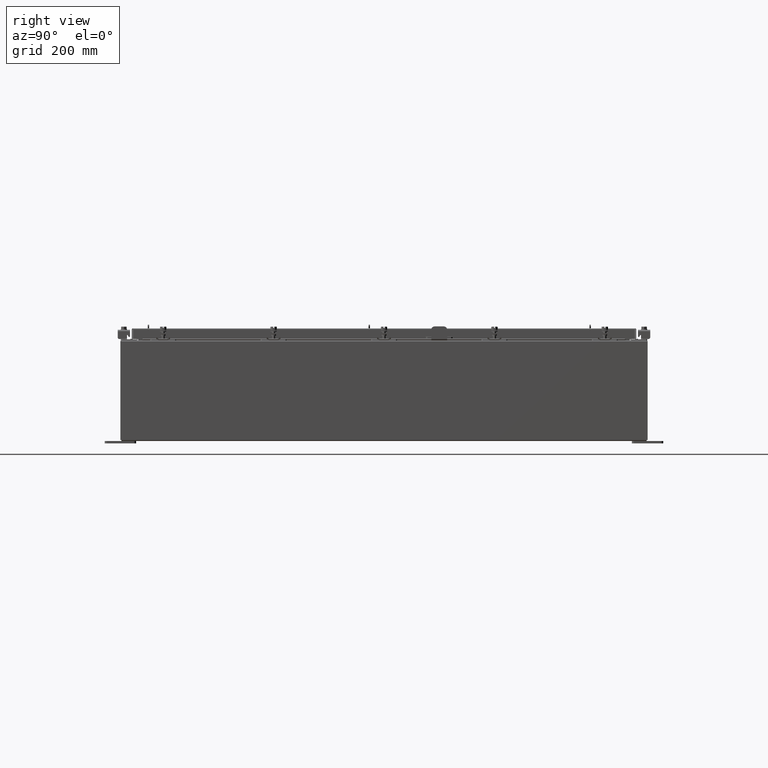
[diagram: clean part render]
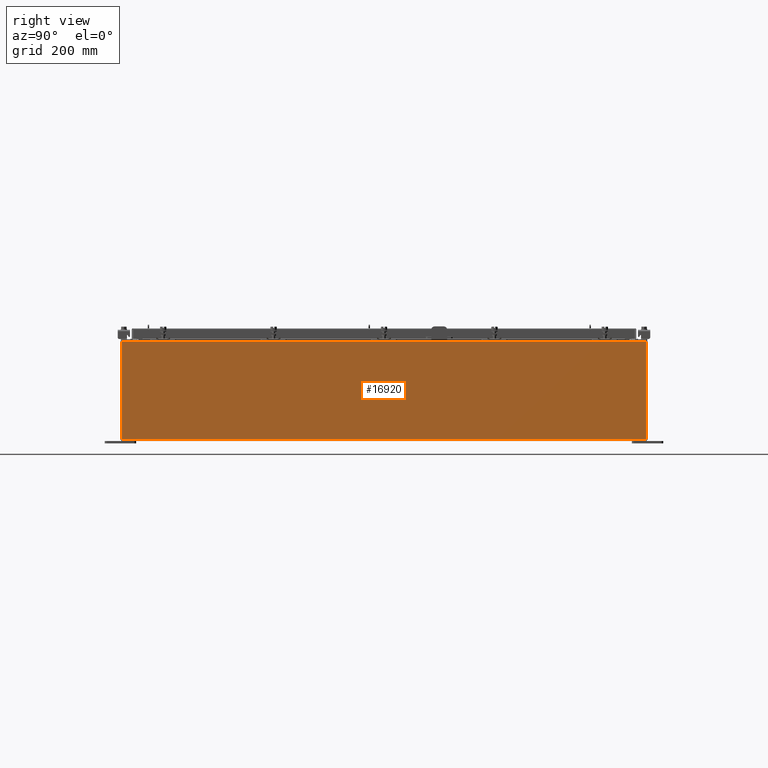
[diagram: same view with one face highlighted and labeled with its STEP entity id]
A machine part, right view. The second image highlights one B-rep face of the part: STEP entity #16920.
In plain terms, the highlighted planar face has unit normal (-1, 0, 0).
Its self-contained STEP definition (entity closure, byte-faithful):
#553 = EDGE_LOOP ( 'NONE', ( #1089, #1114, #8389, #13886 ) ) ;
#887 = CARTESIAN_POINT ( 'NONE',  ( 18.00000000000000400, -20.92529999999999600, 0.01299999999999983600 ) ) ;
#953 = VECTOR ( 'NONE', #8629, 39.37007874015748100 ) ;
#1089 = ORIENTED_EDGE ( 'NONE', *, *, #15969, .T. ) ;
#1114 = ORIENTED_EDGE ( 'NONE', *, *, #21091, .T. ) ;
#2081 = VERTEX_POINT ( 'NONE', #887 ) ;
#2113 = VECTOR ( 'NONE', #17970, 39.37007874015748100 ) ;
#2181 = EDGE_CURVE ( 'NONE', #22878, #2081, #8339, .T. ) ;
#2546 = CARTESIAN_POINT ( 'NONE',  ( 18.00000000000002800, 20.92529999999997900, 7.837599999999999200 ) ) ;
#4061 = DIRECTION ( 'NONE',  ( 3.584876173029202900E-015, 0.0000000000000000000, 1.000000000000000000 ) ) ;
#4849 = CARTESIAN_POINT ( 'NONE',  ( 18.00000000000000400, 20.92529999999998900, -6.478858477053724100E-014 ) ) ;
#5005 = VECTOR ( 'NONE', #11089, 39.37007874015748100 ) ;
#5143 = LINE ( 'NONE', #2546, #10083 ) ;
#5284 = AXIS2_PLACEMENT_3D ( 'NONE', #27170, #16653, #4061 ) ;
#5679 = LINE ( 'NONE', #4849, #5005 ) ;
#8339 = LINE ( 'NONE', #22121, #2113 ) ;
#8389 = ORIENTED_EDGE ( 'NONE', *, *, #2181, .F. ) ;
#8629 = DIRECTION ( 'NONE',  ( -3.584876173029202900E-015, 0.0000000000000000000, -1.000000000000000000 ) ) ;
#8862 = EDGE_CURVE ( 'NONE', #22878, #14551, #5679, .T. ) ;
#9061 = CARTESIAN_POINT ( 'NONE',  ( 18.00000000000002800, 20.92529999999997500, 7.837599999999999200 ) ) ;
#10083 = VECTOR ( 'NONE', #15113, 39.37007874015748100 ) ;
#11089 = DIRECTION ( 'NONE',  ( 3.584876173029202900E-015, 0.0000000000000000000, 1.000000000000000000 ) ) ;
#12122 = LINE ( 'NONE', #19127, #953 ) ;
#12411 = CARTESIAN_POINT ( 'NONE',  ( 18.00000000000000400, 20.92529999999998600, 0.01299999999999984700 ) ) ;
#13886 = ORIENTED_EDGE ( 'NONE', *, *, #8862, .T. ) ;
#14551 = VERTEX_POINT ( 'NONE', #9061 ) ;
#15113 = DIRECTION ( 'NONE',  ( -0.0000000000000000000, -1.000000000000000000, -0.0000000000000000000 ) ) ;
#15969 = EDGE_CURVE ( 'NONE', #14551, #26151, #5143, .T. ) ;
#16556 = PLANE ( 'NONE',  #5284 ) ;
#16653 = DIRECTION ( 'NONE',  ( -1.000000000000000000, 0.0000000000000000000, 3.584876173029202900E-015 ) ) ;
#16920 = ADVANCED_FACE ( 'NONE', ( #18648 ), #16556, .F. ) ;
#17970 = DIRECTION ( 'NONE',  ( -0.0000000000000000000, -1.000000000000000000, -0.0000000000000000000 ) ) ;
#18648 = FACE_OUTER_BOUND ( 'NONE', #553, .T. ) ;
#19127 = CARTESIAN_POINT ( 'NONE',  ( 18.00000000000000400, -20.92529999999999600, -6.478858477053724100E-014 ) ) ;
#21091 = EDGE_CURVE ( 'NONE', #26151, #2081, #12122, .T. ) ;
#22121 = CARTESIAN_POINT ( 'NONE',  ( 18.00000000000000400, -20.92529999999999600, 0.01299999999999984700 ) ) ;
#22878 = VERTEX_POINT ( 'NONE', #12411 ) ;
#25302 = CARTESIAN_POINT ( 'NONE',  ( 18.00000000000003200, -20.92529999999999600, 7.837599999999999200 ) ) ;
#26151 = VERTEX_POINT ( 'NONE', #25302 ) ;
#27170 = CARTESIAN_POINT ( 'NONE',  ( 18.00000000000000400, 0.0000000000000000000, -6.478858477053724100E-014 ) ) ;